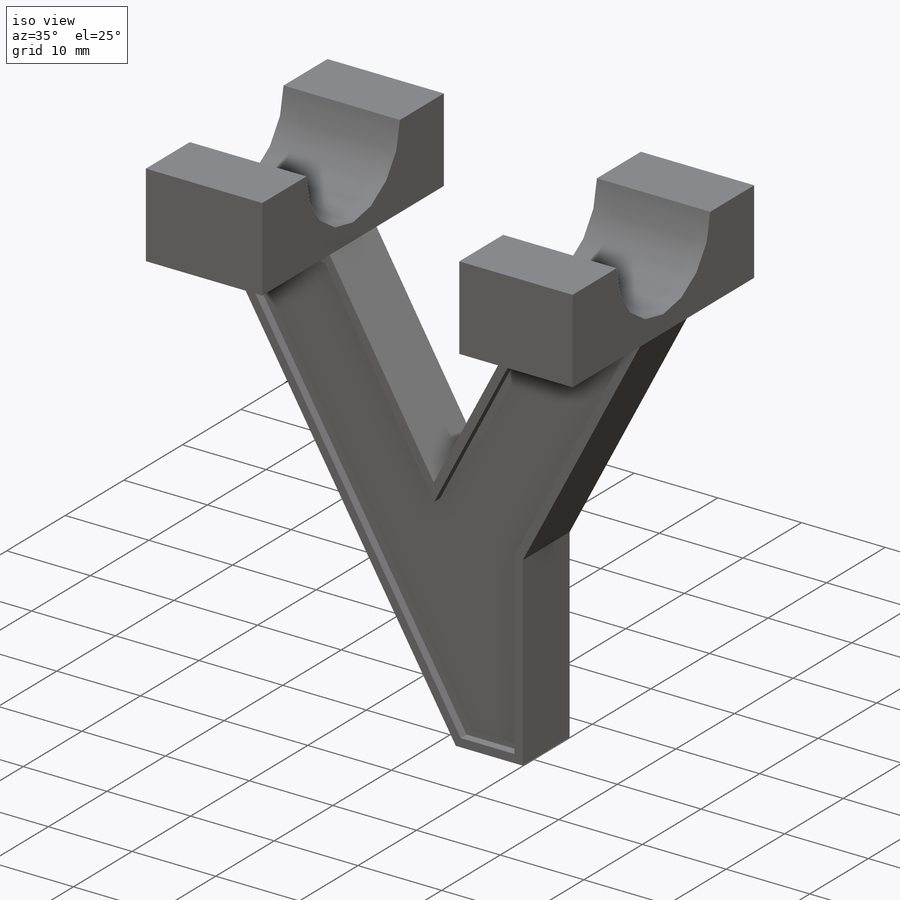
[diagram: iso view]
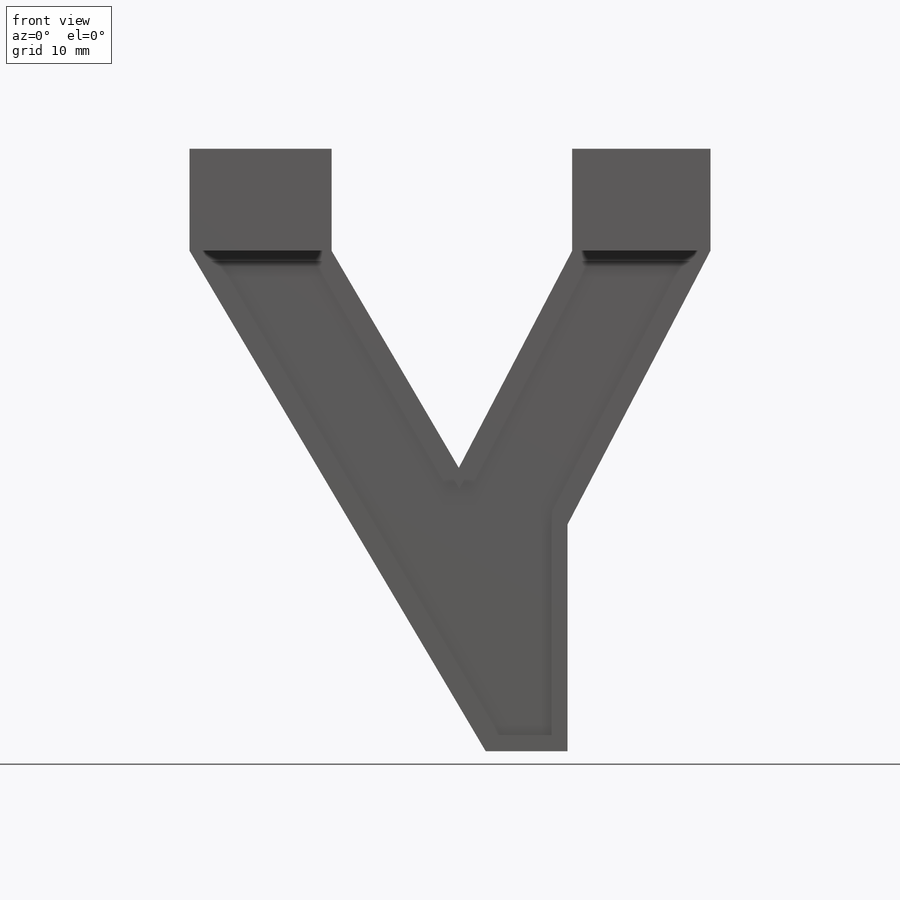
[diagram: front view]
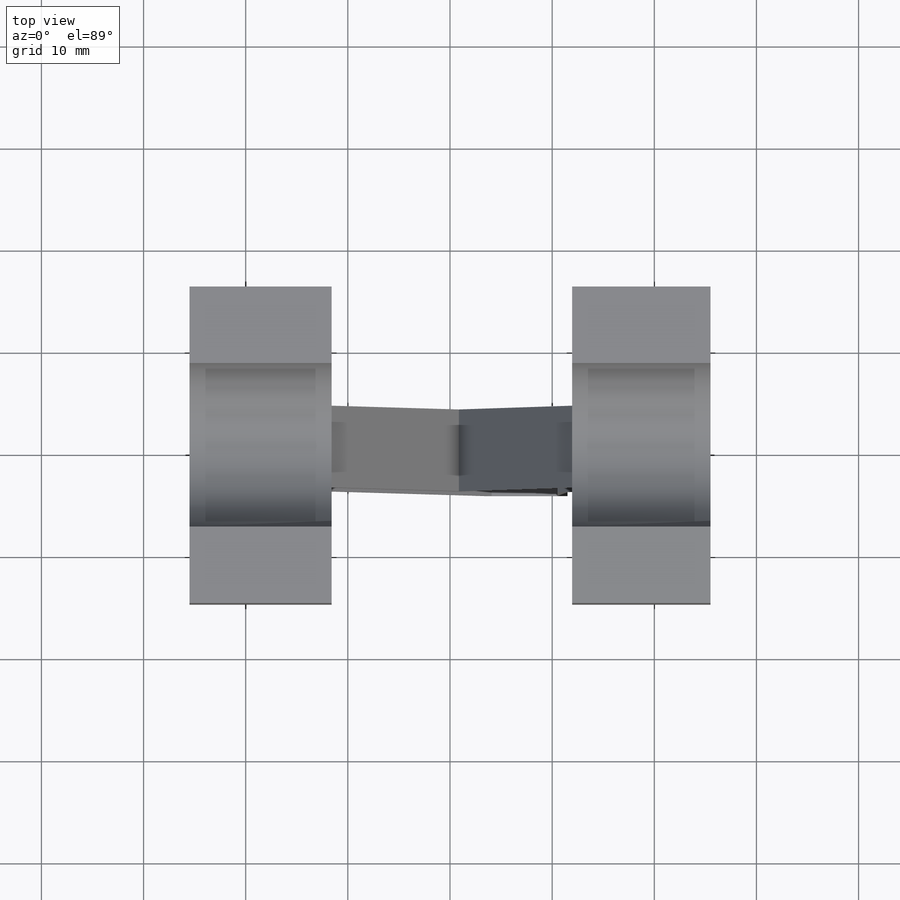
[diagram: top view]
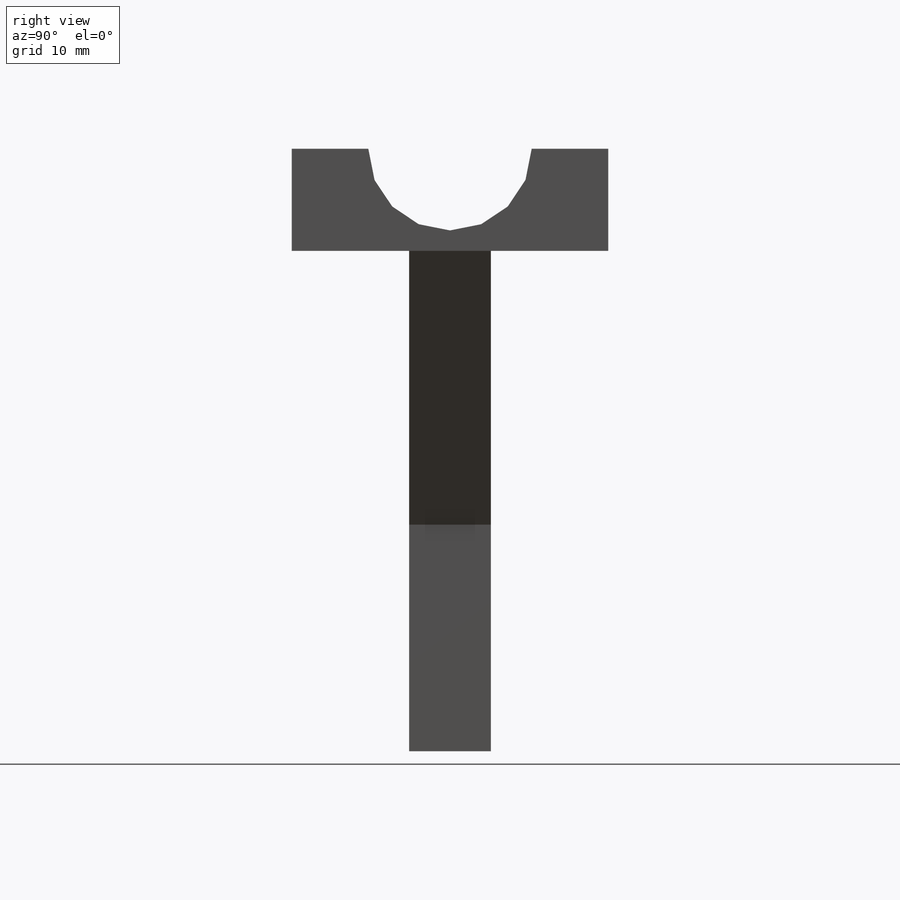
[diagram: right view]
SOLIDWORKS PART (.sldprt)
format: sldprt  version: not decoded by parser v0  size: 305,664 bytes
history: native  units: mm
features: sketch x7, cut_extrude x5, plane x3, extrude x2, material x1 (+9 scaffold rows collapsed)
feature tree (27):
  scaffold x9  (default folders/planes/origin — collapsed)
  material  "Материал <не указан>"
  plane  "Спереди"
  plane  "Сверху"
  plane  "Справа"
  sketch  "Эскиз1"  dims[D1=51.0mm D2=31.0mm]
  extrude  "Бобышка-Вытянуть1"  Depth=10mm
  sketch  "Эскиз2"  dims[D1=~5.839186mm]
  cut_extrude  "Вырез-Вытянуть1"  Depth=51mm
  sketch  "Эскиз3"  dims[D1=8.0mm]
  extrude  "Бобышка-Вытянуть3"  Depth=49mm
  sketch  "Эскиз4"  dims[D1=12.0mm]
  cut_extrude  "Вырез-Вытянуть4"  Depth=49mm
  sketch  "Эскиз6"
  cut_extrude  "Вырез-Вытянуть5"  Depth=49mm
  sketch  "Эскиз7"  dims[D1=1.0mm]
  cut_extrude  "Вырез-Вытянуть6"  Depth=1mm
  sketch  "Эскиз8"  dims[D1=1.0mm]
  cut_extrude  "Вырез-Вытянуть7"  Depth=1mm
decode coverage: 13 of 14 modeling features carry decoded parameters
note: ~ marks probable driven/reference dimensions
note: suppression state not decoded; provenance and decode notes live in map.json
